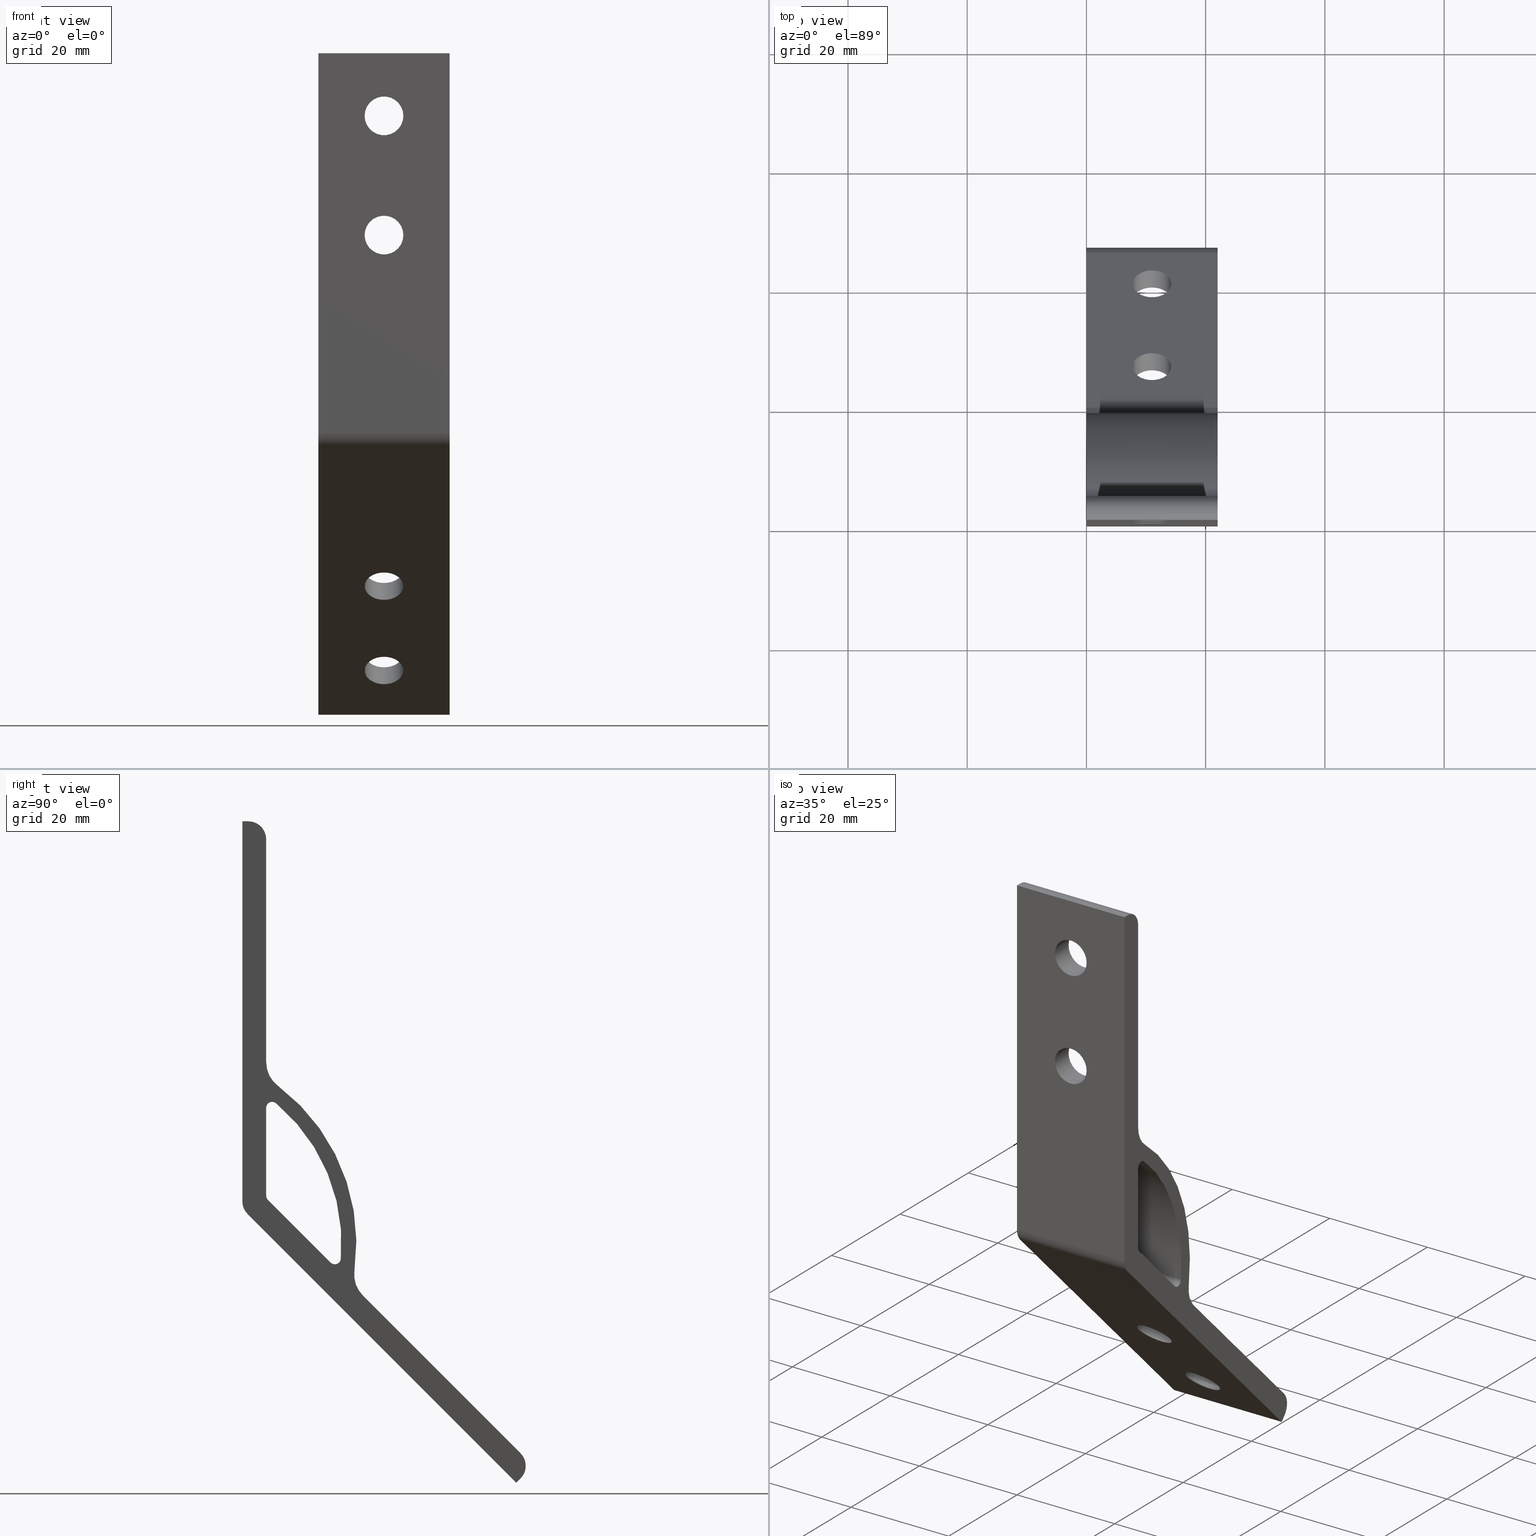
[diagram: canonical four-view strip — front | top / right | iso, engineering-drawing reading convention]
A machine part, canonical four-view strip (front | top / right | iso — engineering-drawing reading convention). The complete STEP part file that produces these views, byte-faithful:
ISO-10303-21;
HEADER;
/* Generated by software containing ST-Developer
 * from STEP Tools, Inc. (www.steptools.com) 
 */

FILE_DESCRIPTION(
/* description */ (''),
/* implementation_level */ '2;1');

FILE_NAME(
/* name */ 
'Q:\\Catalogo\\2_Accessori Dierre\\Per Download Web e catalogo cartace
o\\CATALOGO ELEMENTI ASSEMBLAGGIO\\PAGINA 29\\DANXX0000188.stp',
/* time_stamp */ '2018-10-26T09:03:25+02:00',
/* author */ ('fzagni'),
/* organization */ (''),
/* preprocessor_version */ 'ST-DEVELOPER v16.1',
/* originating_system */ 'Autodesk Inventor 2016',
/* authorisation */ '');

FILE_SCHEMA (('AUTOMOTIVE_DESIGN { 1 0 10303 214 3 1 1 }'));
ENDSEC;

DATA;
#10=MECHANICAL_DESIGN_GEOMETRIC_PRESENTATION_REPRESENTATION('',(#13),#793);
#11=SHAPE_REPRESENTATION_RELATIONSHIP('SRR','None',#802,#12);
#12=ADVANCED_BREP_SHAPE_REPRESENTATION('',(#14),#792);
#13=STYLED_ITEM('',(#811),#14);
#14=MANIFOLD_SOLID_BREP('Solido2',#465);
#15=FACE_BOUND('',#65,.T.);
#16=FACE_BOUND('',#66,.T.);
#17=FACE_BOUND('',#68,.T.);
#18=FACE_BOUND('',#72,.T.);
#19=FACE_BOUND('',#74,.T.);
#20=FACE_BOUND('',#76,.T.);
#21=FACE_BOUND('',#78,.T.);
#22=FACE_BOUND('',#81,.T.);
#23=FACE_BOUND('',#82,.T.);
#24=FACE_BOUND('',#85,.T.);
#25=FACE_BOUND('',#86,.T.);
#26=FACE_BOUND('',#97,.T.);
#27=FACE_BOUND('',#98,.T.);
#28=FACE_BOUND('',#100,.T.);
#29=PLANE('',#470);
#30=PLANE('',#473);
#31=PLANE('',#485);
#32=PLANE('',#498);
#33=PLANE('',#501);
#34=PLANE('',#512);
#35=PLANE('',#515);
#36=PLANE('',#516);
#37=PLANE('',#517);
#38=PLANE('',#518);
#39=FACE_OUTER_BOUND('',#63,.T.);
#40=FACE_OUTER_BOUND('',#64,.T.);
#41=FACE_OUTER_BOUND('',#67,.T.);
#42=FACE_OUTER_BOUND('',#69,.T.);
#43=FACE_OUTER_BOUND('',#70,.T.);
#44=FACE_OUTER_BOUND('',#71,.T.);
#45=FACE_OUTER_BOUND('',#73,.T.);
#46=FACE_OUTER_BOUND('',#75,.T.);
#47=FACE_OUTER_BOUND('',#77,.T.);
#48=FACE_OUTER_BOUND('',#79,.T.);
#49=FACE_OUTER_BOUND('',#80,.T.);
#50=FACE_OUTER_BOUND('',#83,.T.);
#51=FACE_OUTER_BOUND('',#84,.T.);
#52=FACE_OUTER_BOUND('',#87,.T.);
#53=FACE_OUTER_BOUND('',#88,.T.);
#54=FACE_OUTER_BOUND('',#89,.T.);
#55=FACE_OUTER_BOUND('',#90,.T.);
#56=FACE_OUTER_BOUND('',#91,.T.);
#57=FACE_OUTER_BOUND('',#92,.T.);
#58=FACE_OUTER_BOUND('',#93,.T.);
#59=FACE_OUTER_BOUND('',#94,.T.);
#60=FACE_OUTER_BOUND('',#95,.T.);
#61=FACE_OUTER_BOUND('',#96,.T.);
#62=FACE_OUTER_BOUND('',#99,.T.);
#63=EDGE_LOOP('',(#303,#304,#305,#306));
#64=EDGE_LOOP('',(#307,#308,#309,#310));
#65=EDGE_LOOP('',(#311));
#66=EDGE_LOOP('',(#312));
#67=EDGE_LOOP('',(#313,#314,#315,#316,#317,#318,#319,#320,#321,#322,#323,
#324));
#68=EDGE_LOOP('',(#325,#326,#327,#328,#329,#330));
#69=EDGE_LOOP('',(#331,#332,#333,#334));
#70=EDGE_LOOP('',(#335,#336,#337,#338));
#71=EDGE_LOOP('',(#339));
#72=EDGE_LOOP('',(#340));
#73=EDGE_LOOP('',(#341));
#74=EDGE_LOOP('',(#342));
#75=EDGE_LOOP('',(#343));
#76=EDGE_LOOP('',(#344));
#77=EDGE_LOOP('',(#345));
#78=EDGE_LOOP('',(#346));
#79=EDGE_LOOP('',(#347,#348,#349,#350));
#80=EDGE_LOOP('',(#351,#352,#353,#354));
#81=EDGE_LOOP('',(#355));
#82=EDGE_LOOP('',(#356));
#83=EDGE_LOOP('',(#357,#358,#359,#360));
#84=EDGE_LOOP('',(#361,#362,#363,#364));
#85=EDGE_LOOP('',(#365));
#86=EDGE_LOOP('',(#366));
#87=EDGE_LOOP('',(#367,#368,#369,#370));
#88=EDGE_LOOP('',(#371,#372,#373,#374));
#89=EDGE_LOOP('',(#375,#376,#377,#378));
#90=EDGE_LOOP('',(#379,#380,#381,#382));
#91=EDGE_LOOP('',(#383,#384,#385,#386));
#92=EDGE_LOOP('',(#387,#388,#389,#390));
#93=EDGE_LOOP('',(#391,#392,#393,#394));
#94=EDGE_LOOP('',(#395,#396,#397,#398));
#95=EDGE_LOOP('',(#399,#400,#401,#402));
#96=EDGE_LOOP('',(#403,#404,#405,#406));
#97=EDGE_LOOP('',(#407));
#98=EDGE_LOOP('',(#408));
#99=EDGE_LOOP('',(#409,#410,#411,#412,#413,#414,#415,#416,#417,#418,#419,
#420));
#100=EDGE_LOOP('',(#421,#422,#423,#424,#425,#426));
#101=LINE('',#665,#135);
#102=LINE('',#668,#136);
#103=LINE('',#671,#137);
#104=LINE('',#673,#138);
#105=LINE('',#674,#139);
#106=LINE('',#681,#140);
#107=LINE('',#683,#141);
#108=LINE('',#687,#142);
#109=LINE('',#689,#143);
#110=LINE('',#693,#144);
#111=LINE('',#701,#145);
#112=LINE('',#705,#146);
#113=LINE('',#715,#147);
#114=LINE('',#716,#148);
#115=LINE('',#719,#149);
#116=LINE('',#720,#150);
#117=LINE('',#741,#151);
#118=LINE('',#742,#152);
#119=LINE('',#744,#153);
#120=LINE('',#747,#154);
#121=LINE('',#750,#155);
#122=LINE('',#752,#156);
#123=LINE('',#755,#157);
#124=LINE('',#761,#158);
#125=LINE('',#764,#159);
#126=LINE('',#767,#160);
#127=LINE('',#771,#161);
#128=LINE('',#774,#162);
#129=LINE('',#776,#163);
#130=LINE('',#779,#164);
#131=LINE('',#782,#165);
#132=LINE('',#785,#166);
#133=LINE('',#786,#167);
#134=LINE('',#788,#168);
#135=VECTOR('',#525,22.);
#136=VECTOR('',#528,22.);
#137=VECTOR('',#531,37.3951868083209);
#138=VECTOR('',#532,22.);
#139=VECTOR('',#533,37.3951868083209);
#140=VECTOR('',#540,0.999999999999992);
#141=VECTOR('',#541,63.7573593128808);
#142=VECTOR('',#544,63.7573593128807);
#143=VECTOR('',#545,1.);
#144=VECTOR('',#548,37.3951868083209);
#145=VECTOR('',#555,14.7330097743143);
#146=VECTOR('',#558,14.8769330186329);
#147=VECTOR('',#569,22.);
#148=VECTOR('',#570,22.);
#149=VECTOR('',#573,22.);
#150=VECTOR('',#574,1.);
#151=VECTOR('',#599,22.);
#152=VECTOR('',#600,22.);
#153=VECTOR('',#603,63.7573593128807);
#154=VECTOR('',#606,22.);
#155=VECTOR('',#609,22.);
#156=VECTOR('',#612,37.3951868083209);
#157=VECTOR('',#615,22.);
#158=VECTOR('',#624,22.);
#159=VECTOR('',#627,22.);
#160=VECTOR('',#630,22.);
#161=VECTOR('',#635,22.);
#162=VECTOR('',#638,22.);
#163=VECTOR('',#641,14.7330097743143);
#164=VECTOR('',#644,22.);
#165=VECTOR('',#649,14.8769330186329);
#166=VECTOR('',#652,0.999999999999992);
#167=VECTOR('',#653,22.);
#168=VECTOR('',#656,63.7573593128808);
#169=CIRCLE('',#468,3.);
#170=CIRCLE('',#469,3.);
#171=CIRCLE('',#471,3.25);
#172=CIRCLE('',#472,3.25);
#173=CIRCLE('',#474,3.);
#174=CIRCLE('',#475,3.);
#175=CIRCLE('',#476,5.);
#176=CIRCLE('',#477,33.);
#177=CIRCLE('',#478,5.);
#178=CIRCLE('',#479,1.);
#179=CIRCLE('',#480,1.);
#180=CIRCLE('',#481,30.5);
#181=CIRCLE('',#482,1.);
#182=CIRCLE('',#484,3.);
#183=CIRCLE('',#487,3.25);
#184=CIRCLE('',#489,3.25);
#185=CIRCLE('',#491,3.25);
#186=CIRCLE('',#492,3.25);
#187=CIRCLE('',#494,3.25);
#188=CIRCLE('',#495,3.25);
#189=CIRCLE('',#497,3.);
#190=CIRCLE('',#500,5.);
#191=CIRCLE('',#503,5.);
#192=CIRCLE('',#505,33.);
#193=CIRCLE('',#507,1.);
#194=CIRCLE('',#509,30.5);
#195=CIRCLE('',#511,1.);
#196=CIRCLE('',#514,1.);
#197=VERTEX_POINT('',#661);
#198=VERTEX_POINT('',#662);
#199=VERTEX_POINT('',#664);
#200=VERTEX_POINT('',#666);
#201=VERTEX_POINT('',#670);
#202=VERTEX_POINT('',#672);
#203=VERTEX_POINT('',#675);
#204=VERTEX_POINT('',#677);
#205=VERTEX_POINT('',#680);
#206=VERTEX_POINT('',#682);
#207=VERTEX_POINT('',#684);
#208=VERTEX_POINT('',#686);
#209=VERTEX_POINT('',#688);
#210=VERTEX_POINT('',#690);
#211=VERTEX_POINT('',#692);
#212=VERTEX_POINT('',#694);
#213=VERTEX_POINT('',#696);
#214=VERTEX_POINT('',#699);
#215=VERTEX_POINT('',#700);
#216=VERTEX_POINT('',#702);
#217=VERTEX_POINT('',#704);
#218=VERTEX_POINT('',#706);
#219=VERTEX_POINT('',#708);
#220=VERTEX_POINT('',#712);
#221=VERTEX_POINT('',#713);
#222=VERTEX_POINT('',#718);
#223=VERTEX_POINT('',#722);
#224=VERTEX_POINT('',#725);
#225=VERTEX_POINT('',#728);
#226=VERTEX_POINT('',#730);
#227=VERTEX_POINT('',#733);
#228=VERTEX_POINT('',#735);
#229=VERTEX_POINT('',#738);
#230=VERTEX_POINT('',#739);
#231=VERTEX_POINT('',#746);
#232=VERTEX_POINT('',#748);
#233=VERTEX_POINT('',#754);
#234=VERTEX_POINT('',#760);
#235=VERTEX_POINT('',#762);
#236=VERTEX_POINT('',#766);
#237=VERTEX_POINT('',#770);
#238=VERTEX_POINT('',#772);
#239=VERTEX_POINT('',#778);
#240=VERTEX_POINT('',#784);
#241=EDGE_CURVE('',#197,#198,#169,.T.);
#242=EDGE_CURVE('',#198,#199,#101,.T.);
#243=EDGE_CURVE('',#199,#200,#170,.T.);
#244=EDGE_CURVE('',#200,#197,#102,.T.);
#245=EDGE_CURVE('',#200,#201,#103,.T.);
#246=EDGE_CURVE('',#202,#201,#104,.T.);
#247=EDGE_CURVE('',#197,#202,#105,.T.);
#248=EDGE_CURVE('',#203,#203,#171,.T.);
#249=EDGE_CURVE('',#204,#204,#172,.T.);
#250=EDGE_CURVE('',#205,#199,#106,.T.);
#251=EDGE_CURVE('',#206,#205,#107,.T.);
#252=EDGE_CURVE('',#207,#206,#173,.T.);
#253=EDGE_CURVE('',#208,#207,#108,.T.);
#254=EDGE_CURVE('',#209,#208,#109,.T.);
#255=EDGE_CURVE('',#210,#209,#174,.T.);
#256=EDGE_CURVE('',#211,#210,#110,.T.);
#257=EDGE_CURVE('',#212,#211,#175,.T.);
#258=EDGE_CURVE('',#213,#212,#176,.T.);
#259=EDGE_CURVE('',#201,#213,#177,.T.);
#260=EDGE_CURVE('',#214,#215,#111,.T.);
#261=EDGE_CURVE('',#216,#215,#178,.T.);
#262=EDGE_CURVE('',#216,#217,#112,.T.);
#263=EDGE_CURVE('',#218,#217,#179,.T.);
#264=EDGE_CURVE('',#218,#219,#180,.T.);
#265=EDGE_CURVE('',#214,#219,#181,.T.);
#266=EDGE_CURVE('',#220,#221,#182,.T.);
#267=EDGE_CURVE('',#221,#210,#113,.T.);
#268=EDGE_CURVE('',#209,#220,#114,.T.);
#269=EDGE_CURVE('',#208,#222,#115,.T.);
#270=EDGE_CURVE('',#220,#222,#116,.T.);
#271=EDGE_CURVE('',#223,#223,#183,.T.);
#272=EDGE_CURVE('',#224,#224,#184,.T.);
#273=EDGE_CURVE('',#225,#225,#185,.T.);
#274=EDGE_CURVE('',#226,#226,#186,.T.);
#275=EDGE_CURVE('',#227,#227,#187,.T.);
#276=EDGE_CURVE('',#228,#228,#188,.T.);
#277=EDGE_CURVE('',#229,#230,#189,.T.);
#278=EDGE_CURVE('',#230,#207,#117,.T.);
#279=EDGE_CURVE('',#206,#229,#118,.T.);
#280=EDGE_CURVE('',#222,#230,#119,.T.);
#281=EDGE_CURVE('',#211,#231,#120,.T.);
#282=EDGE_CURVE('',#231,#232,#190,.T.);
#283=EDGE_CURVE('',#232,#212,#121,.T.);
#284=EDGE_CURVE('',#231,#221,#122,.T.);
#285=EDGE_CURVE('',#213,#233,#123,.T.);
#286=EDGE_CURVE('',#233,#202,#191,.T.);
#287=EDGE_CURVE('',#233,#232,#192,.T.);
#288=EDGE_CURVE('',#219,#234,#124,.T.);
#289=EDGE_CURVE('',#234,#235,#193,.T.);
#290=EDGE_CURVE('',#235,#214,#125,.T.);
#291=EDGE_CURVE('',#236,#218,#126,.T.);
#292=EDGE_CURVE('',#234,#236,#194,.T.);
#293=EDGE_CURVE('',#215,#237,#127,.T.);
#294=EDGE_CURVE('',#237,#238,#195,.T.);
#295=EDGE_CURVE('',#238,#216,#128,.T.);
#296=EDGE_CURVE('',#237,#235,#129,.T.);
#297=EDGE_CURVE('',#217,#239,#130,.T.);
#298=EDGE_CURVE('',#239,#236,#196,.T.);
#299=EDGE_CURVE('',#239,#238,#131,.T.);
#300=EDGE_CURVE('',#240,#198,#132,.T.);
#301=EDGE_CURVE('',#205,#240,#133,.T.);
#302=EDGE_CURVE('',#229,#240,#134,.T.);
#303=ORIENTED_EDGE('',*,*,#241,.T.);
#304=ORIENTED_EDGE('',*,*,#242,.T.);
#305=ORIENTED_EDGE('',*,*,#243,.T.);
#306=ORIENTED_EDGE('',*,*,#244,.T.);
#307=ORIENTED_EDGE('',*,*,#244,.F.);
#308=ORIENTED_EDGE('',*,*,#245,.T.);
#309=ORIENTED_EDGE('',*,*,#246,.F.);
#310=ORIENTED_EDGE('',*,*,#247,.F.);
#311=ORIENTED_EDGE('',*,*,#248,.T.);
#312=ORIENTED_EDGE('',*,*,#249,.T.);
#313=ORIENTED_EDGE('',*,*,#243,.F.);
#314=ORIENTED_EDGE('',*,*,#250,.F.);
#315=ORIENTED_EDGE('',*,*,#251,.F.);
#316=ORIENTED_EDGE('',*,*,#252,.F.);
#317=ORIENTED_EDGE('',*,*,#253,.F.);
#318=ORIENTED_EDGE('',*,*,#254,.F.);
#319=ORIENTED_EDGE('',*,*,#255,.F.);
#320=ORIENTED_EDGE('',*,*,#256,.F.);
#321=ORIENTED_EDGE('',*,*,#257,.F.);
#322=ORIENTED_EDGE('',*,*,#258,.F.);
#323=ORIENTED_EDGE('',*,*,#259,.F.);
#324=ORIENTED_EDGE('',*,*,#245,.F.);
#325=ORIENTED_EDGE('',*,*,#260,.T.);
#326=ORIENTED_EDGE('',*,*,#261,.F.);
#327=ORIENTED_EDGE('',*,*,#262,.T.);
#328=ORIENTED_EDGE('',*,*,#263,.F.);
#329=ORIENTED_EDGE('',*,*,#264,.T.);
#330=ORIENTED_EDGE('',*,*,#265,.F.);
#331=ORIENTED_EDGE('',*,*,#266,.T.);
#332=ORIENTED_EDGE('',*,*,#267,.T.);
#333=ORIENTED_EDGE('',*,*,#255,.T.);
#334=ORIENTED_EDGE('',*,*,#268,.T.);
#335=ORIENTED_EDGE('',*,*,#268,.F.);
#336=ORIENTED_EDGE('',*,*,#254,.T.);
#337=ORIENTED_EDGE('',*,*,#269,.T.);
#338=ORIENTED_EDGE('',*,*,#270,.F.);
#339=ORIENTED_EDGE('',*,*,#271,.F.);
#340=ORIENTED_EDGE('',*,*,#249,.F.);
#341=ORIENTED_EDGE('',*,*,#272,.F.);
#342=ORIENTED_EDGE('',*,*,#248,.F.);
#343=ORIENTED_EDGE('',*,*,#273,.F.);
#344=ORIENTED_EDGE('',*,*,#274,.F.);
#345=ORIENTED_EDGE('',*,*,#275,.F.);
#346=ORIENTED_EDGE('',*,*,#276,.F.);
#347=ORIENTED_EDGE('',*,*,#277,.T.);
#348=ORIENTED_EDGE('',*,*,#278,.T.);
#349=ORIENTED_EDGE('',*,*,#252,.T.);
#350=ORIENTED_EDGE('',*,*,#279,.T.);
#351=ORIENTED_EDGE('',*,*,#278,.F.);
#352=ORIENTED_EDGE('',*,*,#280,.F.);
#353=ORIENTED_EDGE('',*,*,#269,.F.);
#354=ORIENTED_EDGE('',*,*,#253,.T.);
#355=ORIENTED_EDGE('',*,*,#273,.T.);
#356=ORIENTED_EDGE('',*,*,#275,.T.);
#357=ORIENTED_EDGE('',*,*,#257,.T.);
#358=ORIENTED_EDGE('',*,*,#281,.T.);
#359=ORIENTED_EDGE('',*,*,#282,.T.);
#360=ORIENTED_EDGE('',*,*,#283,.T.);
#361=ORIENTED_EDGE('',*,*,#267,.F.);
#362=ORIENTED_EDGE('',*,*,#284,.F.);
#363=ORIENTED_EDGE('',*,*,#281,.F.);
#364=ORIENTED_EDGE('',*,*,#256,.T.);
#365=ORIENTED_EDGE('',*,*,#274,.T.);
#366=ORIENTED_EDGE('',*,*,#276,.T.);
#367=ORIENTED_EDGE('',*,*,#259,.T.);
#368=ORIENTED_EDGE('',*,*,#285,.T.);
#369=ORIENTED_EDGE('',*,*,#286,.T.);
#370=ORIENTED_EDGE('',*,*,#246,.T.);
#371=ORIENTED_EDGE('',*,*,#283,.F.);
#372=ORIENTED_EDGE('',*,*,#287,.F.);
#373=ORIENTED_EDGE('',*,*,#285,.F.);
#374=ORIENTED_EDGE('',*,*,#258,.T.);
#375=ORIENTED_EDGE('',*,*,#265,.T.);
#376=ORIENTED_EDGE('',*,*,#288,.T.);
#377=ORIENTED_EDGE('',*,*,#289,.T.);
#378=ORIENTED_EDGE('',*,*,#290,.T.);
#379=ORIENTED_EDGE('',*,*,#288,.F.);
#380=ORIENTED_EDGE('',*,*,#264,.F.);
#381=ORIENTED_EDGE('',*,*,#291,.F.);
#382=ORIENTED_EDGE('',*,*,#292,.F.);
#383=ORIENTED_EDGE('',*,*,#261,.T.);
#384=ORIENTED_EDGE('',*,*,#293,.T.);
#385=ORIENTED_EDGE('',*,*,#294,.T.);
#386=ORIENTED_EDGE('',*,*,#295,.T.);
#387=ORIENTED_EDGE('',*,*,#290,.F.);
#388=ORIENTED_EDGE('',*,*,#296,.F.);
#389=ORIENTED_EDGE('',*,*,#293,.F.);
#390=ORIENTED_EDGE('',*,*,#260,.F.);
#391=ORIENTED_EDGE('',*,*,#263,.T.);
#392=ORIENTED_EDGE('',*,*,#297,.T.);
#393=ORIENTED_EDGE('',*,*,#298,.T.);
#394=ORIENTED_EDGE('',*,*,#291,.T.);
#395=ORIENTED_EDGE('',*,*,#295,.F.);
#396=ORIENTED_EDGE('',*,*,#299,.F.);
#397=ORIENTED_EDGE('',*,*,#297,.F.);
#398=ORIENTED_EDGE('',*,*,#262,.F.);
#399=ORIENTED_EDGE('',*,*,#242,.F.);
#400=ORIENTED_EDGE('',*,*,#300,.F.);
#401=ORIENTED_EDGE('',*,*,#301,.F.);
#402=ORIENTED_EDGE('',*,*,#250,.T.);
#403=ORIENTED_EDGE('',*,*,#279,.F.);
#404=ORIENTED_EDGE('',*,*,#251,.T.);
#405=ORIENTED_EDGE('',*,*,#301,.T.);
#406=ORIENTED_EDGE('',*,*,#302,.F.);
#407=ORIENTED_EDGE('',*,*,#271,.T.);
#408=ORIENTED_EDGE('',*,*,#272,.T.);
#409=ORIENTED_EDGE('',*,*,#241,.F.);
#410=ORIENTED_EDGE('',*,*,#247,.T.);
#411=ORIENTED_EDGE('',*,*,#286,.F.);
#412=ORIENTED_EDGE('',*,*,#287,.T.);
#413=ORIENTED_EDGE('',*,*,#282,.F.);
#414=ORIENTED_EDGE('',*,*,#284,.T.);
#415=ORIENTED_EDGE('',*,*,#266,.F.);
#416=ORIENTED_EDGE('',*,*,#270,.T.);
#417=ORIENTED_EDGE('',*,*,#280,.T.);
#418=ORIENTED_EDGE('',*,*,#277,.F.);
#419=ORIENTED_EDGE('',*,*,#302,.T.);
#420=ORIENTED_EDGE('',*,*,#300,.T.);
#421=ORIENTED_EDGE('',*,*,#296,.T.);
#422=ORIENTED_EDGE('',*,*,#289,.F.);
#423=ORIENTED_EDGE('',*,*,#292,.T.);
#424=ORIENTED_EDGE('',*,*,#298,.F.);
#425=ORIENTED_EDGE('',*,*,#299,.T.);
#426=ORIENTED_EDGE('',*,*,#294,.F.);
#427=CYLINDRICAL_SURFACE('',#467,3.);
#428=CYLINDRICAL_SURFACE('',#483,3.);
#429=CYLINDRICAL_SURFACE('',#486,3.25);
#430=CYLINDRICAL_SURFACE('',#488,3.25);
#431=CYLINDRICAL_SURFACE('',#490,3.25);
#432=CYLINDRICAL_SURFACE('',#493,3.25);
#433=CYLINDRICAL_SURFACE('',#496,3.);
#434=CYLINDRICAL_SURFACE('',#499,5.);
#435=CYLINDRICAL_SURFACE('',#502,5.);
#436=CYLINDRICAL_SURFACE('',#504,33.);
#437=CYLINDRICAL_SURFACE('',#506,1.);
#438=CYLINDRICAL_SURFACE('',#508,30.5);
#439=CYLINDRICAL_SURFACE('',#510,1.);
#440=CYLINDRICAL_SURFACE('',#513,1.);
#441=ADVANCED_FACE('',(#39),#427,.T.);
#442=ADVANCED_FACE('',(#40,#15,#16),#29,.T.);
#443=ADVANCED_FACE('',(#41,#17),#30,.F.);
#444=ADVANCED_FACE('',(#42),#428,.T.);
#445=ADVANCED_FACE('',(#43),#31,.T.);
#446=ADVANCED_FACE('',(#44,#18),#429,.F.);
#447=ADVANCED_FACE('',(#45,#19),#430,.F.);
#448=ADVANCED_FACE('',(#46,#20),#431,.F.);
#449=ADVANCED_FACE('',(#47,#21),#432,.F.);
#450=ADVANCED_FACE('',(#48),#433,.T.);
#451=ADVANCED_FACE('',(#49,#22,#23),#32,.T.);
#452=ADVANCED_FACE('',(#50),#434,.F.);
#453=ADVANCED_FACE('',(#51,#24,#25),#33,.T.);
#454=ADVANCED_FACE('',(#52),#435,.F.);
#455=ADVANCED_FACE('',(#53),#436,.T.);
#456=ADVANCED_FACE('',(#54),#437,.F.);
#457=ADVANCED_FACE('',(#55),#438,.F.);
#458=ADVANCED_FACE('',(#56),#439,.F.);
#459=ADVANCED_FACE('',(#57),#34,.F.);
#460=ADVANCED_FACE('',(#58),#440,.F.);
#461=ADVANCED_FACE('',(#59),#35,.F.);
#462=ADVANCED_FACE('',(#60),#36,.T.);
#463=ADVANCED_FACE('',(#61,#26,#27),#37,.T.);
#464=ADVANCED_FACE('',(#62,#28),#38,.T.);
#465=CLOSED_SHELL('',(#441,#442,#443,#444,#445,#446,#447,#448,#449,#450,
#451,#452,#453,#454,#455,#456,#457,#458,#459,#460,#461,#462,#463,#464));
#466=AXIS2_PLACEMENT_3D('placement',#659,#519,#520);
#467=AXIS2_PLACEMENT_3D('',#660,#521,#522);
#468=AXIS2_PLACEMENT_3D('',#663,#523,#524);
#469=AXIS2_PLACEMENT_3D('',#667,#526,#527);
#470=AXIS2_PLACEMENT_3D('',#669,#529,#530);
#471=AXIS2_PLACEMENT_3D('',#676,#534,#535);
#472=AXIS2_PLACEMENT_3D('',#678,#536,#537);
#473=AXIS2_PLACEMENT_3D('',#679,#538,#539);
#474=AXIS2_PLACEMENT_3D('',#685,#542,#543);
#475=AXIS2_PLACEMENT_3D('',#691,#546,#547);
#476=AXIS2_PLACEMENT_3D('',#695,#549,#550);
#477=AXIS2_PLACEMENT_3D('',#697,#551,#552);
#478=AXIS2_PLACEMENT_3D('',#698,#553,#554);
#479=AXIS2_PLACEMENT_3D('',#703,#556,#557);
#480=AXIS2_PLACEMENT_3D('',#707,#559,#560);
#481=AXIS2_PLACEMENT_3D('',#709,#561,#562);
#482=AXIS2_PLACEMENT_3D('',#710,#563,#564);
#483=AXIS2_PLACEMENT_3D('',#711,#565,#566);
#484=AXIS2_PLACEMENT_3D('',#714,#567,#568);
#485=AXIS2_PLACEMENT_3D('',#717,#571,#572);
#486=AXIS2_PLACEMENT_3D('',#721,#575,#576);
#487=AXIS2_PLACEMENT_3D('',#723,#577,#578);
#488=AXIS2_PLACEMENT_3D('',#724,#579,#580);
#489=AXIS2_PLACEMENT_3D('',#726,#581,#582);
#490=AXIS2_PLACEMENT_3D('',#727,#583,#584);
#491=AXIS2_PLACEMENT_3D('',#729,#585,#586);
#492=AXIS2_PLACEMENT_3D('',#731,#587,#588);
#493=AXIS2_PLACEMENT_3D('',#732,#589,#590);
#494=AXIS2_PLACEMENT_3D('',#734,#591,#592);
#495=AXIS2_PLACEMENT_3D('',#736,#593,#594);
#496=AXIS2_PLACEMENT_3D('',#737,#595,#596);
#497=AXIS2_PLACEMENT_3D('',#740,#597,#598);
#498=AXIS2_PLACEMENT_3D('',#743,#601,#602);
#499=AXIS2_PLACEMENT_3D('',#745,#604,#605);
#500=AXIS2_PLACEMENT_3D('',#749,#607,#608);
#501=AXIS2_PLACEMENT_3D('',#751,#610,#611);
#502=AXIS2_PLACEMENT_3D('',#753,#613,#614);
#503=AXIS2_PLACEMENT_3D('',#756,#616,#617);
#504=AXIS2_PLACEMENT_3D('',#757,#618,#619);
#505=AXIS2_PLACEMENT_3D('',#758,#620,#621);
#506=AXIS2_PLACEMENT_3D('',#759,#622,#623);
#507=AXIS2_PLACEMENT_3D('',#763,#625,#626);
#508=AXIS2_PLACEMENT_3D('',#765,#628,#629);
#509=AXIS2_PLACEMENT_3D('',#768,#631,#632);
#510=AXIS2_PLACEMENT_3D('',#769,#633,#634);
#511=AXIS2_PLACEMENT_3D('',#773,#636,#637);
#512=AXIS2_PLACEMENT_3D('',#775,#639,#640);
#513=AXIS2_PLACEMENT_3D('',#777,#642,#643);
#514=AXIS2_PLACEMENT_3D('',#780,#645,#646);
#515=AXIS2_PLACEMENT_3D('',#781,#647,#648);
#516=AXIS2_PLACEMENT_3D('',#783,#650,#651);
#517=AXIS2_PLACEMENT_3D('',#787,#654,#655);
#518=AXIS2_PLACEMENT_3D('',#789,#657,#658);
#519=DIRECTION('axis',(0.,0.,1.));
#520=DIRECTION('refdir',(1.,0.,0.));
#521=DIRECTION('center_axis',(1.,0.,0.));
#522=DIRECTION('ref_axis',(0.,1.,0.));
#523=DIRECTION('center_axis',(-1.,0.,0.));
#524=DIRECTION('ref_axis',(0.,1.,0.));
#525=DIRECTION('',(-1.,0.,0.));
#526=DIRECTION('center_axis',(1.,0.,0.));
#527=DIRECTION('ref_axis',(0.,1.,0.));
#528=DIRECTION('',(1.,0.,0.));
#529=DIRECTION('center_axis',(0.,0.707106781186547,0.707106781186548));
#530=DIRECTION('ref_axis',(0.,-0.707106781186548,0.707106781186548));
#531=DIRECTION('',(0.,-0.707106781186548,0.707106781186547));
#532=DIRECTION('',(-1.,0.,0.));
#533=DIRECTION('',(0.,-0.707106781186548,0.707106781186547));
#534=DIRECTION('center_axis',(0.,-0.707106781186547,-0.707106781186548));
#535=DIRECTION('ref_axis',(1.,0.,0.));
#536=DIRECTION('center_axis',(0.,-0.707106781186547,-0.707106781186548));
#537=DIRECTION('ref_axis',(1.,0.,0.));
#538=DIRECTION('center_axis',(1.,0.,0.));
#539=DIRECTION('ref_axis',(0.,0.,-1.));
#540=DIRECTION('',(0.,0.707106781186544,0.707106781186551));
#541=DIRECTION('',(0.,0.707106781186548,-0.707106781186547));
#542=DIRECTION('center_axis',(1.,0.,0.));
#543=DIRECTION('ref_axis',(0.,-0.923879532511287,-0.382683432365089));
#544=DIRECTION('',(0.,0.,-1.));
#545=DIRECTION('',(0.,-1.,7.67854248315653E-18));
#546=DIRECTION('center_axis',(1.,0.,0.));
#547=DIRECTION('ref_axis',(0.,0.707106781186547,0.707106781186548));
#548=DIRECTION('',(0.,-1.29095700537809E-16,1.));
#549=DIRECTION('center_axis',(-1.,0.,0.));
#550=DIRECTION('ref_axis',(0.,-0.894925676209796,-0.446215232887045));
#551=DIRECTION('center_axis',(1.,0.,0.));
#552=DIRECTION('ref_axis',(0.,0.977350476432027,-0.211627139606643));
#553=DIRECTION('center_axis',(-1.,0.,0.));
#554=DIRECTION('ref_axis',(0.,-0.948329831349067,-0.31728619726274));
#555=DIRECTION('',(0.,0.,-1.));
#556=DIRECTION('center_axis',(-1.,0.,0.));
#557=DIRECTION('ref_axis',(0.,-0.923879532511287,-0.38268343236509));
#558=DIRECTION('',(0.,0.707106781186547,-0.707106781186548));
#559=DIRECTION('center_axis',(-1.,0.,0.));
#560=DIRECTION('ref_axis',(0.,0.341951860740269,-0.939717470805065));
#561=DIRECTION('center_axis',(1.,0.,0.));
#562=DIRECTION('ref_axis',(0.,0.987887330714962,-0.155172877181765));
#563=DIRECTION('center_axis',(-1.,0.,0.));
#564=DIRECTION('ref_axis',(0.,-0.424507902315962,0.905424232540361));
#565=DIRECTION('center_axis',(1.,0.,0.));
#566=DIRECTION('ref_axis',(0.,0.707106781186547,0.707106781186548));
#567=DIRECTION('center_axis',(-1.,0.,0.));
#568=DIRECTION('ref_axis',(0.,0.707106781186547,0.707106781186548));
#569=DIRECTION('',(-1.,0.,0.));
#570=DIRECTION('',(1.,0.,0.));
#571=DIRECTION('center_axis',(0.,7.67854248315653E-18,1.));
#572=DIRECTION('ref_axis',(0.,-1.,7.67854248315653E-18));
#573=DIRECTION('',(1.,0.,0.));
#574=DIRECTION('',(0.,-1.,7.67854248315653E-18));
#575=DIRECTION('center_axis',(0.,0.707106781186547,0.707106781186548));
#576=DIRECTION('ref_axis',(1.,0.,0.));
#577=DIRECTION('center_axis',(0.,0.707106781186547,0.707106781186548));
#578=DIRECTION('ref_axis',(1.,0.,0.));
#579=DIRECTION('center_axis',(0.,0.707106781186547,0.707106781186548));
#580=DIRECTION('ref_axis',(1.,0.,0.));
#581=DIRECTION('center_axis',(0.,0.707106781186547,0.707106781186548));
#582=DIRECTION('ref_axis',(1.,0.,0.));
#583=DIRECTION('center_axis',(0.,1.,1.29095700537809E-16));
#584=DIRECTION('ref_axis',(1.,0.,0.));
#585=DIRECTION('center_axis',(0.,1.,0.));
#586=DIRECTION('ref_axis',(1.,0.,0.));
#587=DIRECTION('center_axis',(0.,-1.,-1.29095700537809E-16));
#588=DIRECTION('ref_axis',(1.,0.,0.));
#589=DIRECTION('center_axis',(0.,1.,1.29095700537809E-16));
#590=DIRECTION('ref_axis',(1.,0.,0.));
#591=DIRECTION('center_axis',(0.,1.,0.));
#592=DIRECTION('ref_axis',(1.,0.,0.));
#593=DIRECTION('center_axis',(0.,-1.,-1.29095700537809E-16));
#594=DIRECTION('ref_axis',(1.,0.,0.));
#595=DIRECTION('center_axis',(1.,0.,0.));
#596=DIRECTION('ref_axis',(0.,-0.923879532511287,-0.382683432365089));
#597=DIRECTION('center_axis',(-1.,0.,0.));
#598=DIRECTION('ref_axis',(0.,-0.923879532511287,-0.382683432365089));
#599=DIRECTION('',(-1.,0.,0.));
#600=DIRECTION('',(1.,0.,0.));
#601=DIRECTION('center_axis',(0.,-1.,0.));
#602=DIRECTION('ref_axis',(0.,0.,-1.));
#603=DIRECTION('',(0.,0.,-1.));
#604=DIRECTION('center_axis',(1.,0.,0.));
#605=DIRECTION('ref_axis',(0.,-0.894925676209796,-0.446215232887045));
#606=DIRECTION('',(1.,0.,0.));
#607=DIRECTION('center_axis',(1.,0.,0.));
#608=DIRECTION('ref_axis',(0.,-0.894925676209796,-0.446215232887045));
#609=DIRECTION('',(-1.,0.,0.));
#610=DIRECTION('center_axis',(0.,1.,1.29095700537809E-16));
#611=DIRECTION('ref_axis',(0.,-8.88178419700125E-17,1.));
#612=DIRECTION('',(0.,-1.29095700537809E-16,1.));
#613=DIRECTION('center_axis',(1.,0.,0.));
#614=DIRECTION('ref_axis',(0.,-0.948329831349067,-0.31728619726274));
#615=DIRECTION('',(1.,0.,0.));
#616=DIRECTION('center_axis',(1.,0.,0.));
#617=DIRECTION('ref_axis',(0.,-0.948329831349067,-0.31728619726274));
#618=DIRECTION('center_axis',(1.,0.,0.));
#619=DIRECTION('ref_axis',(0.,0.977350476432027,-0.211627139606643));
#620=DIRECTION('center_axis',(1.,0.,0.));
#621=DIRECTION('ref_axis',(0.,0.977350476432027,-0.211627139606643));
#622=DIRECTION('center_axis',(1.,0.,0.));
#623=DIRECTION('ref_axis',(0.,-0.424507902315962,0.905424232540361));
#624=DIRECTION('',(1.,0.,0.));
#625=DIRECTION('center_axis',(1.,0.,0.));
#626=DIRECTION('ref_axis',(0.,-0.424507902315962,0.905424232540361));
#627=DIRECTION('',(-1.,0.,0.));
#628=DIRECTION('center_axis',(1.,0.,0.));
#629=DIRECTION('ref_axis',(0.,0.987887330714962,-0.155172877181765));
#630=DIRECTION('',(-1.,0.,0.));
#631=DIRECTION('center_axis',(-1.,0.,0.));
#632=DIRECTION('ref_axis',(0.,0.987887330714962,-0.155172877181765));
#633=DIRECTION('center_axis',(1.,0.,0.));
#634=DIRECTION('ref_axis',(0.,-0.923879532511287,-0.38268343236509));
#635=DIRECTION('',(1.,0.,0.));
#636=DIRECTION('center_axis',(1.,0.,0.));
#637=DIRECTION('ref_axis',(0.,-0.923879532511287,-0.38268343236509));
#638=DIRECTION('',(-1.,0.,0.));
#639=DIRECTION('center_axis',(0.,-1.,0.));
#640=DIRECTION('ref_axis',(0.,0.,-1.));
#641=DIRECTION('',(0.,0.,1.));
#642=DIRECTION('center_axis',(1.,0.,0.));
#643=DIRECTION('ref_axis',(0.,0.341951860740269,-0.939717470805065));
#644=DIRECTION('',(1.,0.,0.));
#645=DIRECTION('center_axis',(1.,0.,0.));
#646=DIRECTION('ref_axis',(0.,0.341951860740269,-0.939717470805065));
#647=DIRECTION('center_axis',(0.,-0.707106781186548,-0.707106781186547));
#648=DIRECTION('ref_axis',(0.,0.707106781186547,-0.707106781186548));
#649=DIRECTION('',(0.,-0.707106781186547,0.707106781186548));
#650=DIRECTION('center_axis',(0.,0.707106781186551,-0.707106781186544));
#651=DIRECTION('ref_axis',(0.,0.707106781186544,0.707106781186551));
#652=DIRECTION('',(0.,0.707106781186544,0.707106781186551));
#653=DIRECTION('',(1.,0.,0.));
#654=DIRECTION('center_axis',(0.,-0.707106781186547,-0.707106781186548));
#655=DIRECTION('ref_axis',(0.,0.707106781186548,-0.707106781186547));
#656=DIRECTION('',(0.,0.707106781186548,-0.707106781186547));
#657=DIRECTION('center_axis',(1.,0.,0.));
#658=DIRECTION('ref_axis',(0.,0.,-1.));
#659=CARTESIAN_POINT('',(0.,0.,0.));
#660=CARTESIAN_POINT('Origin',(0.,44.5477272147525,-108.133513652379));
#661=CARTESIAN_POINT('',(22.,46.6690475583121,-106.01219330882));
#662=CARTESIAN_POINT('',(22.,46.6690475583122,-110.254833995939));
#663=CARTESIAN_POINT('Origin',(22.,44.5477272147525,-108.133513652379));
#664=CARTESIAN_POINT('',(0.,46.6690475583122,-110.254833995939));
#665=CARTESIAN_POINT('',(0.,46.6690475583122,-110.254833995939));
#666=CARTESIAN_POINT('',(0.,46.6690475583121,-106.01219330882));
#667=CARTESIAN_POINT('Origin',(0.,44.5477272147525,-108.133513652379));
#668=CARTESIAN_POINT('',(0.,46.6690475583121,-106.01219330882));
#669=CARTESIAN_POINT('Origin',(0.,48.7903679018718,-108.133513652379));
#670=CARTESIAN_POINT('',(0.,20.2266573824107,-79.5698031329183));
#671=CARTESIAN_POINT('',(0.,48.7903679018718,-108.133513652379));
#672=CARTESIAN_POINT('',(22.,20.2266573824107,-79.5698031329183));
#673=CARTESIAN_POINT('',(0.,20.2266573824107,-79.5698031329183));
#674=CARTESIAN_POINT('',(22.,48.7903679018718,-108.133513652379));
#675=CARTESIAN_POINT('',(14.25,41.365746699413,-100.708892449921));
#676=CARTESIAN_POINT('Origin',(11.,41.3657466994131,-100.708892449921));
#677=CARTESIAN_POINT('',(14.25,27.2236110756821,-86.5667568261897));
#678=CARTESIAN_POINT('Origin',(11.,27.2236110756821,-86.5667568261897));
#679=CARTESIAN_POINT('Origin',(0.,14.7684598283409,-58.882703643739));
#680=CARTESIAN_POINT('',(0.,45.9619407771256,-110.961940777126));
#681=CARTESIAN_POINT('',(0.,45.9619407771256,-110.961940777126));
#682=CARTESIAN_POINT('',(0.,0.87867965644036,-65.8786796564404));
#683=CARTESIAN_POINT('',(0.,0.,-65.));
#684=CARTESIAN_POINT('',(0.,0.,-63.7573593128807));
#685=CARTESIAN_POINT('Origin',(0.,3.,-63.7573593128807));
#686=CARTESIAN_POINT('',(0.,0.,0.));
#687=CARTESIAN_POINT('',(0.,0.,0.));
#688=CARTESIAN_POINT('',(0.,1.,-7.67854248315653E-18));
#689=CARTESIAN_POINT('',(0.,4.,-3.07141699326261E-17));
#690=CARTESIAN_POINT('',(0.,4.,-3.));
#691=CARTESIAN_POINT('Origin',(0.,1.,-3.));
#692=CARTESIAN_POINT('',(0.,4.00000000000001,-40.3951868083209));
#693=CARTESIAN_POINT('',(0.,4.00000000000001,-43.));
#694=CARTESIAN_POINT('',(0.,5.99108034060439,-44.3884814985864));
#695=CARTESIAN_POINT('Origin',(0.,9.00000000000001,-40.3951868083209));
#696=CARTESIAN_POINT('',(0.,18.8108780383763,-75.3382109674268));
#697=CARTESIAN_POINT('Origin',(0.,-13.8677894114067,-70.7442264543386));
#698=CARTESIAN_POINT('Origin',(0.,23.7621912883435,-76.0342692269856));
#699=CARTESIAN_POINT('',(0.,4.00000000000001,-48.0670016962954));
#700=CARTESIAN_POINT('',(0.,4.00000000000001,-62.8000114706097));
#701=CARTESIAN_POINT('',(0.,4.00000000000001,-52.4543378392636));
#702=CARTESIAN_POINT('',(0.,4.29289321881347,-63.5071182517962));
#703=CARTESIAN_POINT('Origin',(0.,5.00000000000001,-62.8000114706097));
#704=CARTESIAN_POINT('',(0.,14.8124734395469,-74.0266984725296));
#705=CARTESIAN_POINT('',(0.,5.60923460977427,-64.823459642757));
#706=CARTESIAN_POINT('',(0.,16.5157622421619,-73.4068922078517));
#707=CARTESIAN_POINT('Origin',(0.,15.5195802207334,-73.3195916913431));
#708=CARTESIAN_POINT('',(0.,5.63958608174261,-47.2982822129719));
#709=CARTESIAN_POINT('Origin',(0.,-13.8677894114067,-70.7442264543386));
#710=CARTESIAN_POINT('Origin',(0.,5.00000000000001,-48.0670016962954));
#711=CARTESIAN_POINT('Origin',(0.,1.,-3.));
#712=CARTESIAN_POINT('',(22.,1.,-7.67854248315653E-18));
#713=CARTESIAN_POINT('',(22.,4.,-3.));
#714=CARTESIAN_POINT('Origin',(22.,1.,-3.));
#715=CARTESIAN_POINT('',(0.,4.,-3.));
#716=CARTESIAN_POINT('',(0.,1.,0.));
#717=CARTESIAN_POINT('Origin',(0.,4.,-3.07141699326261E-17));
#718=CARTESIAN_POINT('',(22.,0.,0.));
#719=CARTESIAN_POINT('',(0.,0.,0.));
#720=CARTESIAN_POINT('',(22.,4.,-3.07141699326261E-17));
#721=CARTESIAN_POINT('Origin',(11.,-59.8885358988539,-173.678903800726));
#722=CARTESIAN_POINT('',(7.75,24.3951839509359,-89.3951839509359));
#723=CARTESIAN_POINT('Origin',(11.,24.3951839509359,-89.3951839509359));
#724=CARTESIAN_POINT('Origin',(11.,-45.746400275123,-187.821039424457));
#725=CARTESIAN_POINT('',(7.75,38.5373195746669,-103.537319574667));
#726=CARTESIAN_POINT('Origin',(11.,38.5373195746669,-103.537319574667));
#727=CARTESIAN_POINT('Origin',(11.,-119.195179698827,-10.5));
#728=CARTESIAN_POINT('',(7.75,0.,-10.5));
#729=CARTESIAN_POINT('Origin',(11.,0.,-10.5));
#730=CARTESIAN_POINT('',(14.25,4.,-10.5));
#731=CARTESIAN_POINT('Origin',(11.,4.,-10.5));
#732=CARTESIAN_POINT('Origin',(11.,-119.195179698827,-30.5));
#733=CARTESIAN_POINT('',(7.75,0.,-30.5));
#734=CARTESIAN_POINT('Origin',(11.,0.,-30.5));
#735=CARTESIAN_POINT('',(14.25,4.,-30.5));
#736=CARTESIAN_POINT('Origin',(11.,4.,-30.5));
#737=CARTESIAN_POINT('Origin',(0.,3.,-63.7573593128807));
#738=CARTESIAN_POINT('',(22.,0.87867965644036,-65.8786796564404));
#739=CARTESIAN_POINT('',(22.,0.,-63.7573593128807));
#740=CARTESIAN_POINT('Origin',(22.,3.,-63.7573593128807));
#741=CARTESIAN_POINT('',(0.,0.,-63.7573593128807));
#742=CARTESIAN_POINT('',(0.,0.878679656440358,-65.8786796564404));
#743=CARTESIAN_POINT('Origin',(0.,0.,0.));
#744=CARTESIAN_POINT('',(22.,0.,0.));
#745=CARTESIAN_POINT('Origin',(0.,9.00000000000001,-40.3951868083209));
#746=CARTESIAN_POINT('',(22.,4.00000000000001,-40.3951868083209));
#747=CARTESIAN_POINT('',(0.,4.00000000000001,-40.3951868083209));
#748=CARTESIAN_POINT('',(22.,5.99108034060439,-44.3884814985864));
#749=CARTESIAN_POINT('Origin',(22.,9.00000000000001,-40.3951868083209));
#750=CARTESIAN_POINT('',(0.,5.99108034060439,-44.3884814985864));
#751=CARTESIAN_POINT('Origin',(0.,4.00000000000001,-43.));
#752=CARTESIAN_POINT('',(22.,4.00000000000001,-43.));
#753=CARTESIAN_POINT('Origin',(0.,23.7621912883435,-76.0342692269856));
#754=CARTESIAN_POINT('',(22.,18.8108780383763,-75.3382109674268));
#755=CARTESIAN_POINT('',(0.,18.8108780383763,-75.3382109674268));
#756=CARTESIAN_POINT('Origin',(22.,23.7621912883435,-76.0342692269856));
#757=CARTESIAN_POINT('Origin',(0.,-13.8677894114067,-70.7442264543386));
#758=CARTESIAN_POINT('Origin',(22.,-13.8677894114067,-70.7442264543386));
#759=CARTESIAN_POINT('Origin',(0.,5.00000000000001,-48.0670016962954));
#760=CARTESIAN_POINT('',(22.,5.63958608174261,-47.2982822129719));
#761=CARTESIAN_POINT('',(0.,5.63958608174262,-47.2982822129719));
#762=CARTESIAN_POINT('',(22.,4.00000000000001,-48.0670016962954));
#763=CARTESIAN_POINT('Origin',(22.,5.00000000000001,-48.0670016962954));
#764=CARTESIAN_POINT('',(0.,4.00000000000001,-48.0670016962954));
#765=CARTESIAN_POINT('Origin',(0.,-13.8677894114067,-70.7442264543386));
#766=CARTESIAN_POINT('',(22.,16.5157622421619,-73.4068922078517));
#767=CARTESIAN_POINT('',(0.,16.5157622421619,-73.4068922078517));
#768=CARTESIAN_POINT('Origin',(22.,-13.8677894114067,-70.7442264543386));
#769=CARTESIAN_POINT('Origin',(0.,5.00000000000001,-62.8000114706097));
#770=CARTESIAN_POINT('',(22.,4.00000000000001,-62.8000114706097));
#771=CARTESIAN_POINT('',(0.,4.00000000000001,-62.8000114706097));
#772=CARTESIAN_POINT('',(22.,4.29289321881347,-63.5071182517962));
#773=CARTESIAN_POINT('Origin',(22.,5.00000000000001,-62.8000114706097));
#774=CARTESIAN_POINT('',(0.,4.29289321881347,-63.5071182517962));
#775=CARTESIAN_POINT('Origin',(0.,4.00000000000001,-46.0259720347882));
#776=CARTESIAN_POINT('',(22.,4.00000000000001,-52.4543378392636));
#777=CARTESIAN_POINT('Origin',(0.,15.5195802207334,-73.3195916913431));
#778=CARTESIAN_POINT('',(22.,14.8124734395469,-74.0266984725296));
#779=CARTESIAN_POINT('',(0.,14.8124734395469,-74.0266984725296));
#780=CARTESIAN_POINT('Origin',(22.,15.5195802207334,-73.3195916913431));
#781=CARTESIAN_POINT('Origin',(0.,4.00000000000001,-63.2142250329828));
#782=CARTESIAN_POINT('',(22.,5.60923460977427,-64.823459642757));
#783=CARTESIAN_POINT('Origin',(0.,45.9619407771256,-110.961940777126));
#784=CARTESIAN_POINT('',(22.,45.9619407771256,-110.961940777126));
#785=CARTESIAN_POINT('',(22.,45.9619407771256,-110.961940777126));
#786=CARTESIAN_POINT('',(0.,45.9619407771256,-110.961940777126));
#787=CARTESIAN_POINT('Origin',(0.,0.,-65.));
#788=CARTESIAN_POINT('',(22.,0.,-65.));
#789=CARTESIAN_POINT('Origin',(22.,14.7684598283409,-58.882703643739));
#790=UNCERTAINTY_MEASURE_WITH_UNIT(LENGTH_MEASURE(0.01),#794,
'DISTANCE_ACCURACY_VALUE',
'Maximum model space distance between geometric entities at asserted c
onnectivities');
#791=UNCERTAINTY_MEASURE_WITH_UNIT(LENGTH_MEASURE(1.E-6),#794,
'DISTANCE_ACCURACY_VALUE',
'Maximum model space distance between geometric entities at asserted c
onnectivities');
#792=(
GEOMETRIC_REPRESENTATION_CONTEXT(3)
GLOBAL_UNCERTAINTY_ASSIGNED_CONTEXT((#790))
GLOBAL_UNIT_ASSIGNED_CONTEXT((#794,#797,#795))
REPRESENTATION_CONTEXT('','3D')
);
#793=(
GEOMETRIC_REPRESENTATION_CONTEXT(3)
GLOBAL_UNCERTAINTY_ASSIGNED_CONTEXT((#791))
GLOBAL_UNIT_ASSIGNED_CONTEXT((#794,#797,#795))
REPRESENTATION_CONTEXT('','3D')
);
#794=(
LENGTH_UNIT()
NAMED_UNIT(*)
SI_UNIT(.MILLI.,.METRE.)
);
#795=(
NAMED_UNIT(*)
SI_UNIT($,.STERADIAN.)
SOLID_ANGLE_UNIT()
);
#796=DIMENSIONAL_EXPONENTS(0.,0.,0.,0.,0.,0.,0.);
#797=(
CONVERSION_BASED_UNIT('degree',#799)
NAMED_UNIT(#796)
PLANE_ANGLE_UNIT()
);
#798=(
NAMED_UNIT(*)
PLANE_ANGLE_UNIT()
SI_UNIT($,.RADIAN.)
);
#799=PLANE_ANGLE_MEASURE_WITH_UNIT(PLANE_ANGLE_MEASURE(0.01745329252),#798);
#800=SHAPE_DEFINITION_REPRESENTATION(#801,#802);
#801=PRODUCT_DEFINITION_SHAPE('',$,#804);
#802=SHAPE_REPRESENTATION('',(#466),#792);
#803=PRODUCT_DEFINITION_CONTEXT('part definition',#808,'design');
#804=PRODUCT_DEFINITION('440000000307','440000000307',#805,#803);
#805=PRODUCT_DEFINITION_FORMATION('','A',#810);
#806=PRODUCT_RELATED_PRODUCT_CATEGORY('440000000307','440000000307',(#810));
#807=APPLICATION_PROTOCOL_DEFINITION('international standard',
'automotive_design',2009,#808);
#808=APPLICATION_CONTEXT(
'Core Data for Automotive Mechanical Design Process');
#809=PRODUCT_CONTEXT('part definition',#808,'mechanical');
#810=PRODUCT('440000000307','440000000307',$,(#809));
#811=PRESENTATION_STYLE_ASSIGNMENT((#812));
#812=SURFACE_STYLE_USAGE(.BOTH.,#813);
#813=SURFACE_SIDE_STYLE('',(#814));
#814=SURFACE_STYLE_FILL_AREA(#815);
#815=FILL_AREA_STYLE('',(#816));
#816=FILL_AREA_STYLE_COLOUR('',#817);
#817=COLOUR_RGB('',0.749019607843137,0.749019607843137,0.749019607843137);
ENDSEC;
END-ISO-10303-21;
